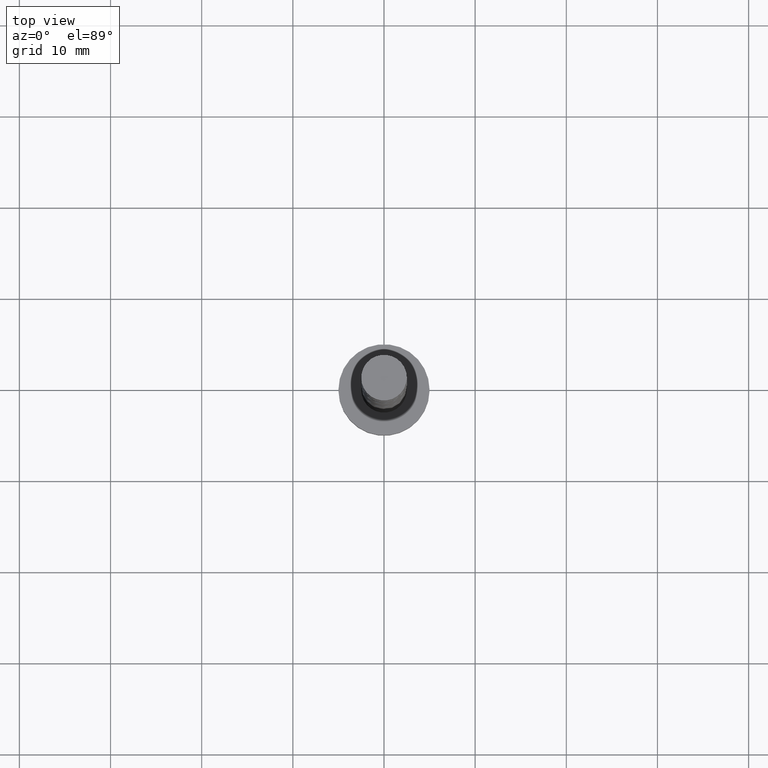
[diagram: clean part render]
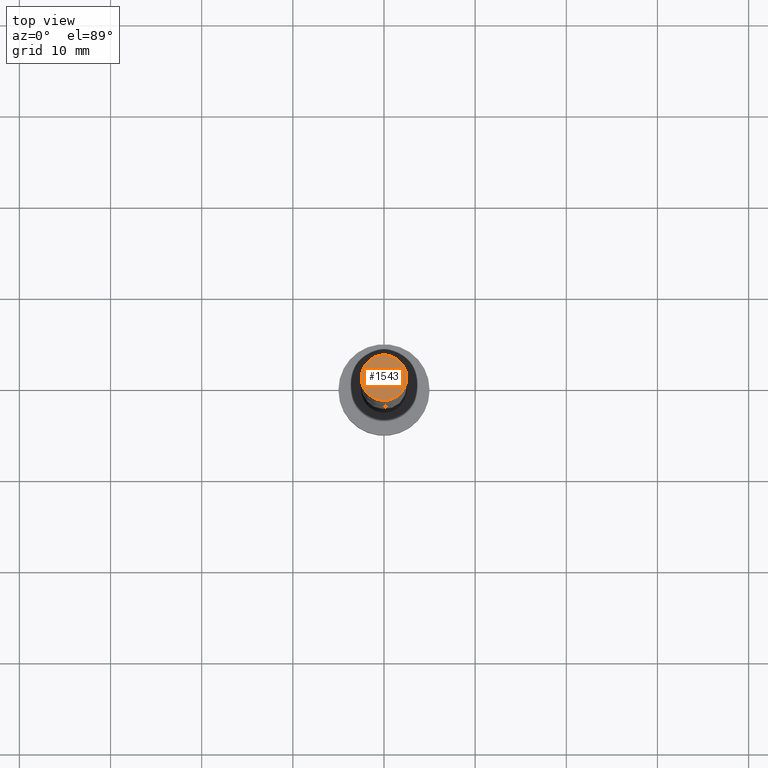
[diagram: same view with one face highlighted and labeled with its STEP entity id]
A machine part, top view. The second image highlights one B-rep face of the part: STEP entity #1543.
In plain terms, the highlighted planar face has unit normal (0, 0, 1).
Its self-contained STEP definition (entity closure, byte-faithful):
#68 = DIRECTION ( 'NONE',  ( 0.000000000000000000, 0.000000000000000000, 1.000000000000000000 ) ) ;
#72 = EDGE_LOOP ( 'NONE', ( #795, #696 ) ) ;
#92 = CIRCLE ( 'NONE', #834, 2.500000000000000000 ) ;
#103 = CARTESIAN_POINT ( 'NONE',  ( 0.000000000000000000, 0.000000000000000000, 79.00000000000000000 ) ) ;
#129 = DIRECTION ( 'NONE',  ( 0.000000000000000000, 0.000000000000000000, 1.000000000000000000 ) ) ;
#197 = AXIS2_PLACEMENT_3D ( 'NONE', #1282, #68, #302 ) ;
#220 = CIRCLE ( 'NONE', #876, 2.500000000000000000 ) ;
#261 = CARTESIAN_POINT ( 'NONE',  ( 2.500000000000000000, 3.061616997868383141E-16, 79.00000000000000000 ) ) ;
#302 = DIRECTION ( 'NONE',  ( 1.000000000000000000, 0.000000000000000000, -0.000000000000000000 ) ) ;
#347 = CARTESIAN_POINT ( 'NONE',  ( -2.500000000000000000, 0.000000000000000000, 79.00000000000000000 ) ) ;
#408 = CARTESIAN_POINT ( 'NONE',  ( 0.000000000000000000, 0.000000000000000000, 79.00000000000000000 ) ) ;
#534 = EDGE_CURVE ( 'NONE', #1058, #813, #220, .T. ) ;
#613 = DIRECTION ( 'NONE',  ( 1.000000000000000000, 0.000000000000000000, 0.000000000000000000 ) ) ;
#696 = ORIENTED_EDGE ( 'NONE', *, *, #1019, .T. ) ;
#795 = ORIENTED_EDGE ( 'NONE', *, *, #534, .T. ) ;
#813 = VERTEX_POINT ( 'NONE', #261 ) ;
#834 = AXIS2_PLACEMENT_3D ( 'NONE', #408, #888, #894 ) ;
#876 = AXIS2_PLACEMENT_3D ( 'NONE', #103, #129, #613 ) ;
#888 = DIRECTION ( 'NONE',  ( 0.000000000000000000, 0.000000000000000000, 1.000000000000000000 ) ) ;
#894 = DIRECTION ( 'NONE',  ( 1.000000000000000000, 0.000000000000000000, 0.000000000000000000 ) ) ;
#920 = FACE_OUTER_BOUND ( 'NONE', #72, .T. ) ;
#1019 = EDGE_CURVE ( 'NONE', #813, #1058, #92, .T. ) ;
#1058 = VERTEX_POINT ( 'NONE', #347 ) ;
#1282 = CARTESIAN_POINT ( 'NONE',  ( 0.000000000000000000, 0.000000000000000000, 79.00000000000000000 ) ) ;
#1505 = PLANE ( 'NONE',  #197 ) ;
#1543 = ADVANCED_FACE ( 'NONE', ( #920 ), #1505, .T. ) ;